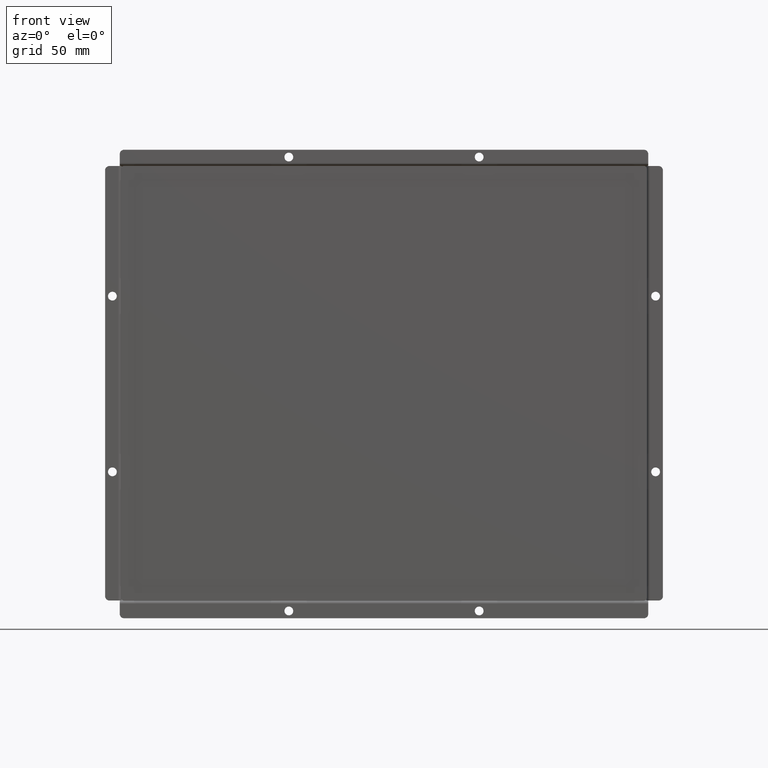
[diagram: clean part render]
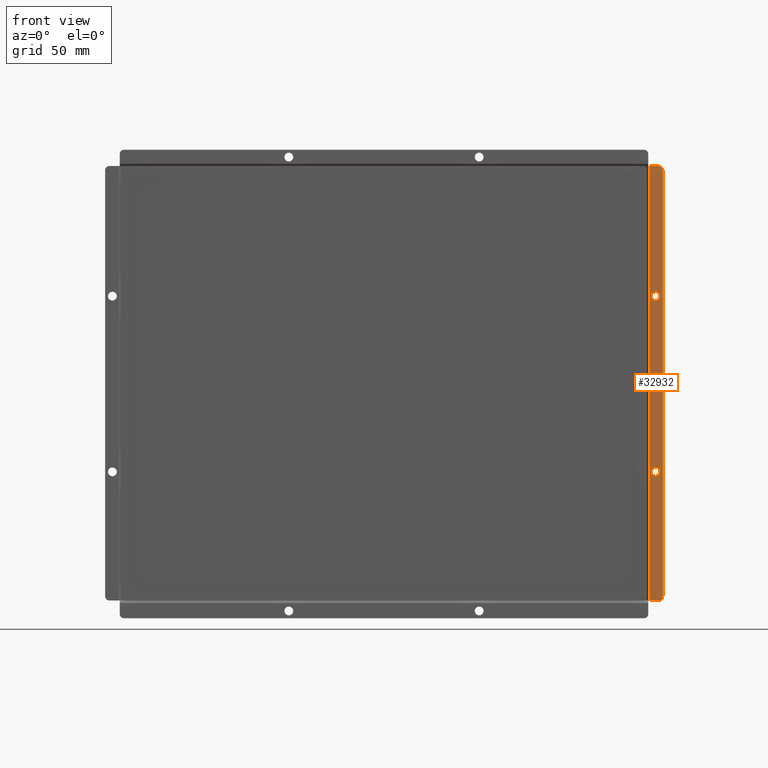
[diagram: same view with one face highlighted and labeled with its STEP entity id]
A machine part, front view. The second image highlights one B-rep face of the part: STEP entity #32932.
In plain terms, the highlighted planar face has unit normal (0, 1, -0).
Its self-contained STEP definition (entity closure, byte-faithful):
#2021=FACE_BOUND('',#5457,.T.);
#2022=FACE_BOUND('',#5458,.T.);
#2360=PLANE('',#35358);
#3576=FACE_OUTER_BOUND('',#5456,.T.);
#5456=EDGE_LOOP('',(#23472,#23473,#23474,#23475,#23476,#23477));
#5457=EDGE_LOOP('',(#23478));
#5458=EDGE_LOOP('',(#23479));
#7650=LINE('',#47849,#10860);
#7656=LINE('',#47865,#10866);
#7699=LINE('',#47979,#10909);
#7701=LINE('',#47986,#10911);
#10860=VECTOR('',#38675,10.);
#10866=VECTOR('',#38691,10.);
#10909=VECTOR('',#38812,10.);
#10911=VECTOR('',#38820,10.);
#13985=CIRCLE('',#35275,3.);
#13987=CIRCLE('',#35278,3.);
#14001=CIRCLE('',#35304,3.);
#14004=CIRCLE('',#35310,3.);
#15267=VERTEX_POINT('',#47752);
#15269=VERTEX_POINT('',#47758);
#15297=VERTEX_POINT('',#47836);
#15298=VERTEX_POINT('',#47837);
#15302=VERTEX_POINT('',#47847);
#15306=VERTEX_POINT('',#47859);
#15307=VERTEX_POINT('',#47863);
#15339=VERTEX_POINT('',#47978);
#18478=EDGE_CURVE('',#15267,#15267,#13985,.T.);
#18481=EDGE_CURVE('',#15269,#15269,#13987,.T.);
#18518=EDGE_CURVE('',#15297,#15298,#14001,.T.);
#18524=EDGE_CURVE('',#15302,#15297,#7650,.T.);
#18529=EDGE_CURVE('',#15306,#15302,#14004,.T.);
#18532=EDGE_CURVE('',#15307,#15306,#7656,.T.);
#18588=EDGE_CURVE('',#15307,#15339,#7699,.T.);
#18592=EDGE_CURVE('',#15298,#15339,#7701,.T.);
#23472=ORIENTED_EDGE('',*,*,#18518,.F.);
#23473=ORIENTED_EDGE('',*,*,#18524,.F.);
#23474=ORIENTED_EDGE('',*,*,#18529,.F.);
#23475=ORIENTED_EDGE('',*,*,#18532,.F.);
#23476=ORIENTED_EDGE('',*,*,#18588,.T.);
#23477=ORIENTED_EDGE('',*,*,#18592,.F.);
#23478=ORIENTED_EDGE('',*,*,#18478,.T.);
#23479=ORIENTED_EDGE('',*,*,#18481,.T.);
#32932=ADVANCED_FACE('',(#3576,#2021,#2022),#2360,.F.);
#35275=AXIS2_PLACEMENT_3D('',#47754,#38583,#38584);
#35278=AXIS2_PLACEMENT_3D('',#47760,#38590,#38591);
#35304=AXIS2_PLACEMENT_3D('',#47838,#38665,#38666);
#35310=AXIS2_PLACEMENT_3D('',#47860,#38685,#38686);
#35358=AXIS2_PLACEMENT_3D('',#47996,#38832,#38833);
#38583=DIRECTION('center_axis',(-2.11356356384598E-15,-2.36064742581639E-16,
-1.));
#38584=DIRECTION('ref_axis',(1.,-1.04174775374666E-33,-1.66634849692134E-18));
#38590=DIRECTION('center_axis',(-2.11356356384598E-15,-2.36064742581639E-16,
-1.));
#38591=DIRECTION('ref_axis',(1.,-1.04174775374666E-33,-1.66634849692134E-18));
#38665=DIRECTION('center_axis',(-2.11356356384598E-15,-2.36064742581639E-16,
-1.));
#38666=DIRECTION('ref_axis',(0.707106781186569,-0.707106781186527,0.));
#38675=DIRECTION('',(4.79880687778639E-16,-1.,2.40157070637942E-16));
#38685=DIRECTION('center_axis',(-2.11356356384598E-15,-2.36064742581639E-16,
-1.));
#38686=DIRECTION('ref_axis',(0.707106781186552,0.707106781186543,0.));
#38691=DIRECTION('',(1.,2.40318283561374E-16,-4.27087746129779E-16));
#38812=DIRECTION('',(2.40318283561374E-16,-1.,2.36064742581639E-16));
#38820=DIRECTION('',(-1.,-4.7120406919465E-14,8.82055185704391E-15));
#38832=DIRECTION('center_axis',(-2.11356356384598E-15,-2.36064742581639E-16,
-1.));
#38833=DIRECTION('ref_axis',(-1.,-1.07830519097144E-18,2.11356356384598E-15));
#47752=CARTESIAN_POINT('',(182.5,59.5,19.));
#47754=CARTESIAN_POINT('Origin',(185.5,59.5,19.));
#47758=CARTESIAN_POINT('',(182.5,-60.5,19.0000000000001));
#47760=CARTESIAN_POINT('Origin',(185.5,-60.5,19.0000000000001));
#47836=CARTESIAN_POINT('',(190.5,-145.399999999999,19.0000000000001));
#47837=CARTESIAN_POINT('',(187.5,-148.399999999999,19.0000000000001));
#47838=CARTESIAN_POINT('Origin',(187.5,-145.399999999999,19.0000000000001));
#47847=CARTESIAN_POINT('',(190.5,145.4,19.0000000000001));
#47849=CARTESIAN_POINT('',(190.5,148.4,19.0000000000001));
#47859=CARTESIAN_POINT('',(187.5,148.4,19.0000000000001));
#47860=CARTESIAN_POINT('Origin',(187.5,145.4,19.));
#47863=CARTESIAN_POINT('',(181.5,148.4,19.0000000000001));
#47865=CARTESIAN_POINT('',(181.5,148.4,19.0000000000001));
#47978=CARTESIAN_POINT('',(181.5,-148.4,19.0000000000001));
#47979=CARTESIAN_POINT('',(181.5,2.2005488224852E-14,19.0000000000001));
#47986=CARTESIAN_POINT('',(179.238053289415,-148.4,19.0000000000002));
#47996=CARTESIAN_POINT('Origin',(184.869026644708,2.62342866032027E-14,
19.0000000000001));